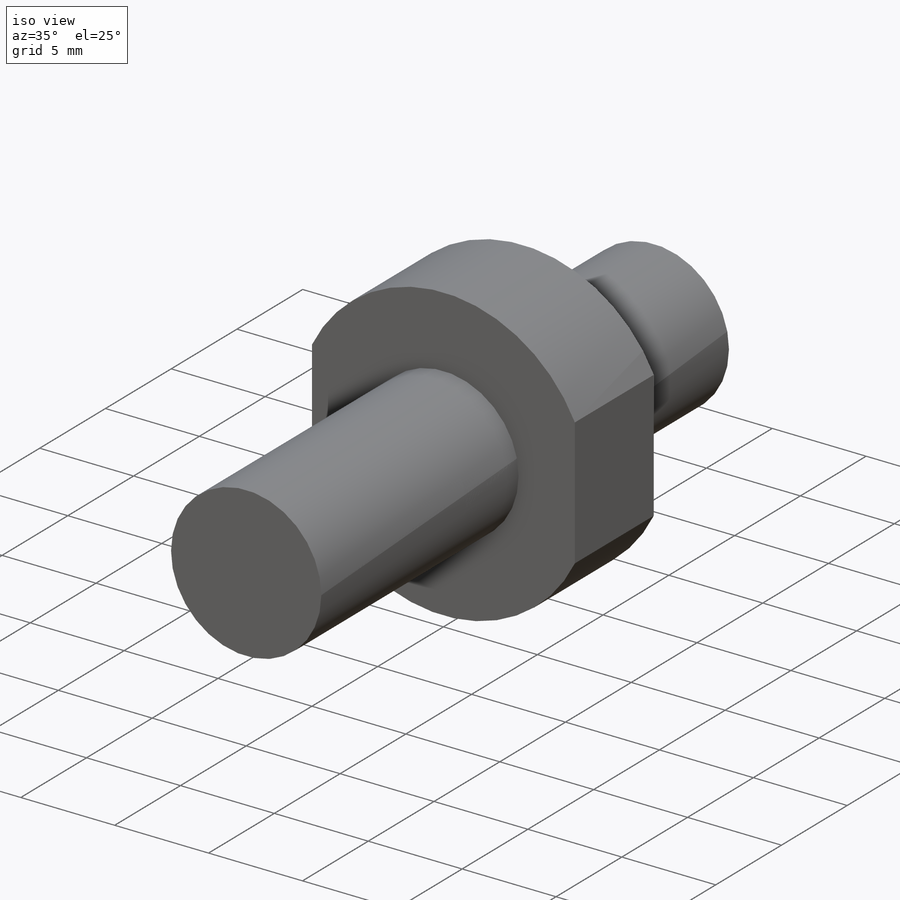
[diagram: iso view]
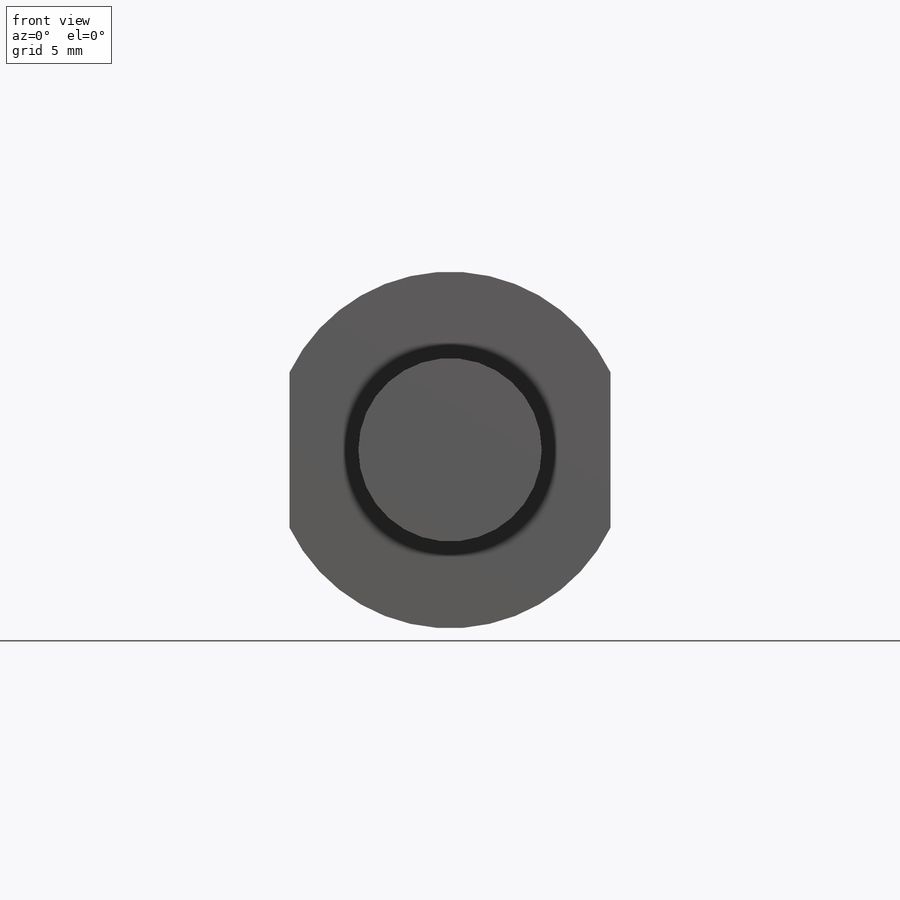
[diagram: front view]
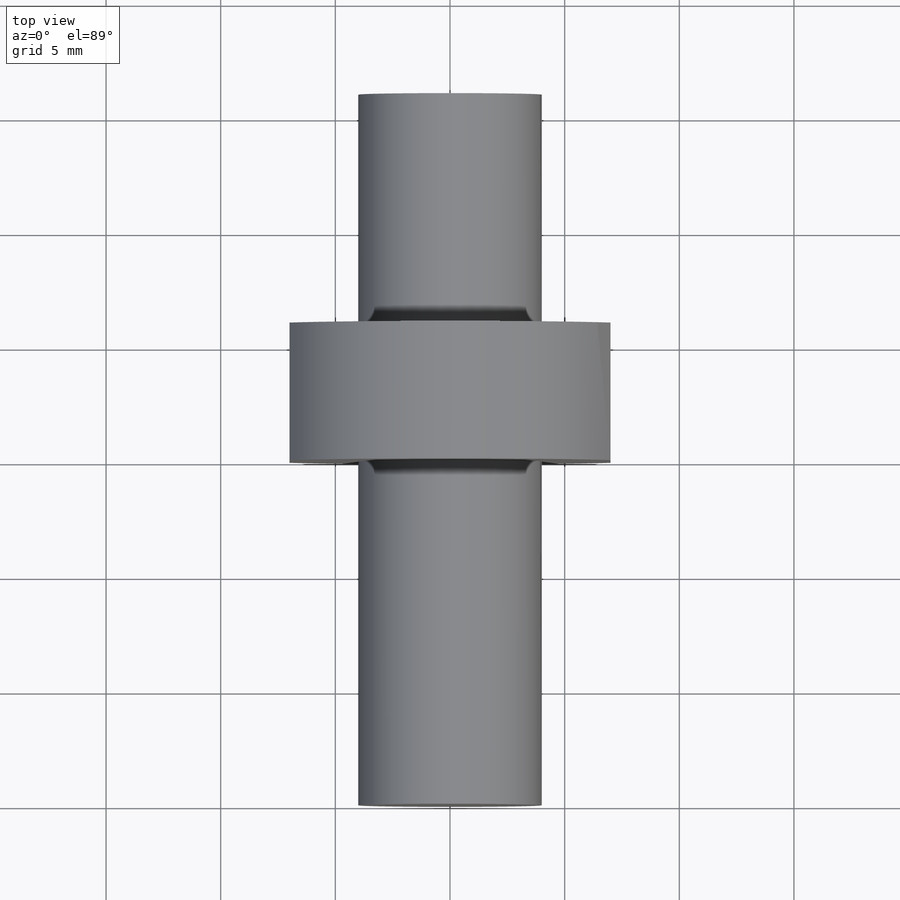
[diagram: top view]
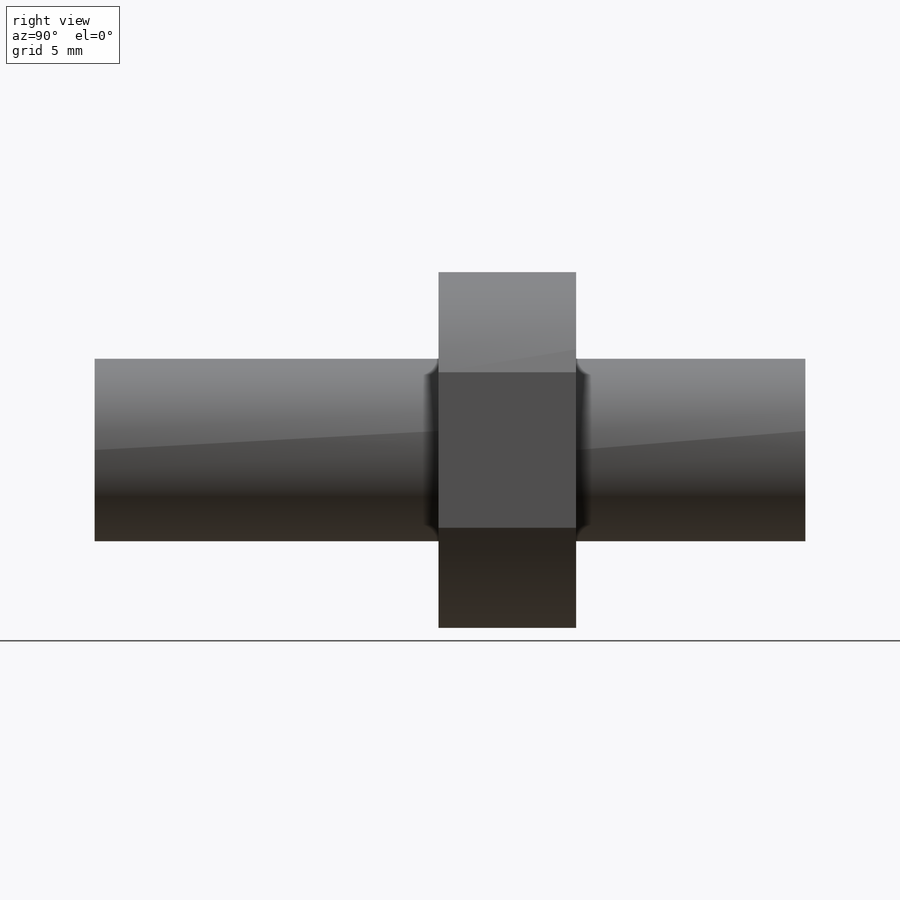
[diagram: right view]
SOLIDWORKS PART (.sldprt)
format: sldprt  version: not decoded by parser v0  size: 304,640 bytes
history: native  units: mm
features: sketch x5, plane x3, thread x2, cut_extrude x2, material x1, revolve x1, hole x1 (+10 scaffold rows collapsed)
feature tree (25):
  scaffold x10  (default folders/planes/origin — collapsed)
  material  "普通碳钢"
  plane  "前视基准面"
  plane  "上视基准面"
  plane  "右视基准面"
  sketch  "草图2"  dims[c1.D1=8.0mm c1.D2=1.0mm c1.D3=12.0mm c1.D4=1.0mm c1.D5=10.0mm c1.D6=20.0mm c1.D7=8.0mm c1.D8=8.0mm c1.D9=10.0mm c1.D10=5.0mm c1.D11=4.0mm c2.D2=5.0mm c2.D1=4.0mm c3.D2=1.0mm c3.D3=1.0mm c3.D4=10.0mm c3.D5=8.0mm c3.D6=6.0mm c3.D7=4.0mm c3.D8=9.0mm c3.D1=15.0mm c4.D2=4.0mm]
  revolve  "旋转1"  [1 undecoded]
  thread  "装饰螺纹线1"  Diameter=11mm  [1 undecoded]
  sketch  "草图3"  dims[c1.D1=13.0mm c1.D2=13.0mm c1.D3=13.0mm c1.D4=~14.823953deg c2.D3=13.0mm c2.D4=~75.176047deg c3.D3=13.0mm c3.D1=7.0mm c3.D2=8.0mm c4.D3=~16.823898mm]
  cut_extrude  "切除-拉伸1"  Depth=10mm
  hole  "M4 螺纹孔1"  [1 undecoded]
  sketch  "3D草图1"
  thread  "孔螺蚊线1"  Diameter=8mm  [1 undecoded]
  sketch  "草图4"  dims[hole-wizard template sketch: 46 standard entries collapsed; hole parameters kept: c15.螺纹孔钻头直径=3.3mm c15.螺纹孔钻头深度=11.5mm c15.D3=~14.816244mm c15.导头角度=118.0deg]
  sketch  "草图5"  dims[D1=~10.927663mm]
  cut_extrude  "切除-拉伸2"  Depth=10mm
decode coverage: 8 of 11 modeling features carry decoded parameters
note: ~ marks probable driven/reference dimensions
note: 4 parameter values undecoded
note: suppression state not decoded; provenance and decode notes live in map.json
